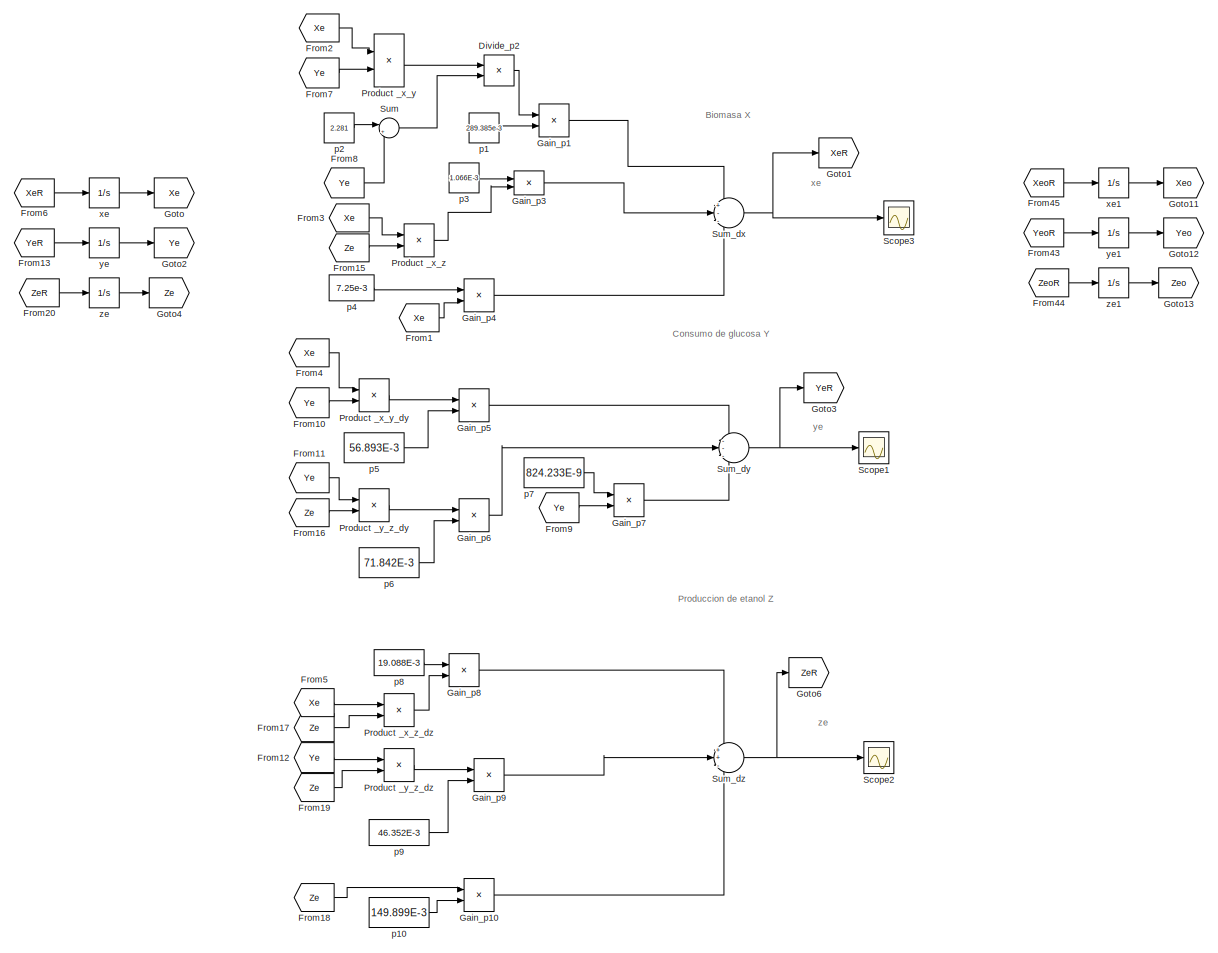
[diagram: root canvas - part 1/2, left side, full height]
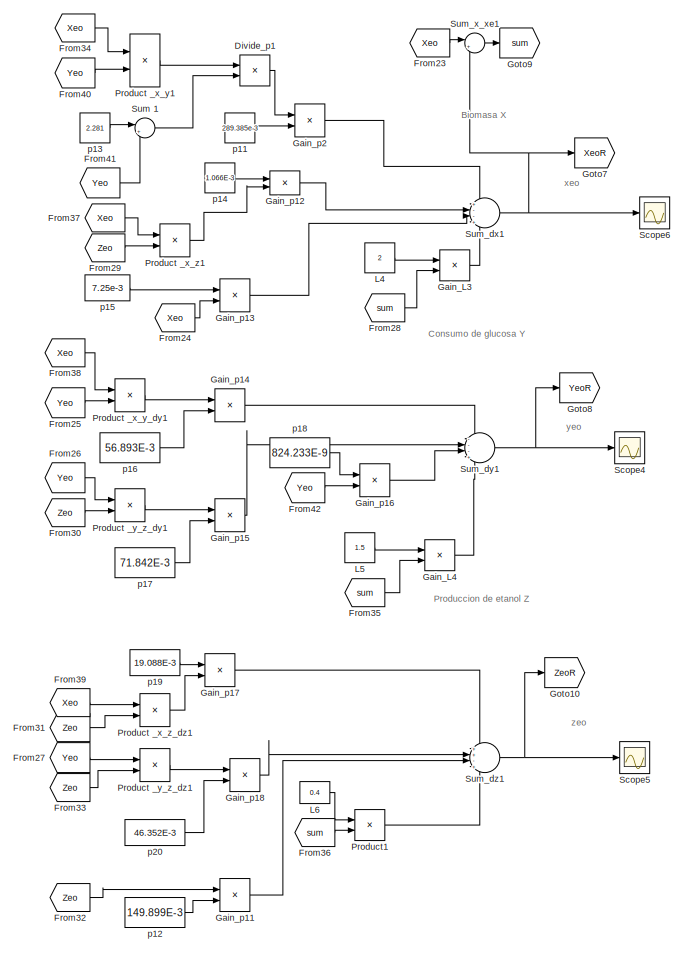
[diagram: root canvas - part 2/2, right side, full height]
MODEL slx_ba76b1b708d0
KIND model
CONFIG AbsTol = auto
CONFIG EnableMultiTasking = off
CONFIG FixedStep = 0.001
CONFIG MaxStep = auto
CONFIG MinStep = auto
CONFIG RelTol = 1e-3
CONFIG SampleTimeConstraint = Unconstrained
CONFIG SolverName = ode4
CONFIG StartTime = 0.0
CONFIG StopTime = 20
BLOCK [Product] Divide_p1
  Inputs = */
  Ports = [2, 1]
BLOCK [Product] Divide_p2
  Inputs = */
  Ports = [2, 1]
BLOCK [From] From1
  GotoTag = Xe
BLOCK [From] From10
  GotoTag = Ye
BLOCK [From] From11
  GotoTag = Ye
BLOCK [From] From12
  GotoTag = Ye
BLOCK [From] From13
  GotoTag = YeR
BLOCK [From] From15
  GotoTag = Ze
BLOCK [From] From16
  GotoTag = Ze
BLOCK [From] From17
  GotoTag = Ze
BLOCK [From] From18
  GotoTag = Ze
BLOCK [From] From19
  GotoTag = Ze
BLOCK [From] From2
  GotoTag = Xe
BLOCK [From] From20
  GotoTag = ZeR
BLOCK [From] From23
  GotoTag = Xeo
BLOCK [From] From24
  GotoTag = Xeo
BLOCK [From] From25
  GotoTag = Yeo
BLOCK [From] From26
  GotoTag = Yeo
BLOCK [From] From27
  GotoTag = Yeo
BLOCK [From] From28
  GotoTag = sum
BLOCK [From] From29
  GotoTag = Zeo
BLOCK [From] From3
  GotoTag = Xe
BLOCK [From] From30
  GotoTag = Zeo
BLOCK [From] From31
  GotoTag = Zeo
BLOCK [From] From32
  GotoTag = Zeo
BLOCK [From] From33
  GotoTag = Zeo
BLOCK [From] From34
  GotoTag = Xeo
BLOCK [From] From35
  GotoTag = sum
BLOCK [From] From36
  GotoTag = sum
BLOCK [From] From37
  GotoTag = Xeo
BLOCK [From] From38
  GotoTag = Xeo
BLOCK [From] From39
  GotoTag = Xeo
BLOCK [From] From4
  GotoTag = Xe
BLOCK [From] From40
  GotoTag = Yeo
BLOCK [From] From41
  GotoTag = Yeo
BLOCK [From] From42
  GotoTag = Yeo
BLOCK [From] From43
  GotoTag = YeoR
BLOCK [From] From44
  GotoTag = ZeoR
BLOCK [From] From45
  GotoTag = XeoR
BLOCK [From] From5
  GotoTag = Xe
BLOCK [From] From6
  GotoTag = XeR
BLOCK [From] From7
  GotoTag = Ye
BLOCK [From] From8
  GotoTag = Ye
BLOCK [From] From9
  GotoTag = Ye
BLOCK [Product] Gain_L3
  Ports = [2, 1]
BLOCK [Product] Gain_L4
  Ports = [2, 1]
BLOCK [Product] Gain_p1
  Ports = [2, 1]
BLOCK [Product] Gain_p10
  Ports = [2, 1]
BLOCK [Product] Gain_p11
  Ports = [2, 1]
BLOCK [Product] Gain_p12
  Ports = [2, 1]
BLOCK [Product] Gain_p13
  Ports = [2, 1]
BLOCK [Product] Gain_p14
  Ports = [2, 1]
BLOCK [Product] Gain_p15
  Ports = [2, 1]
BLOCK [Product] Gain_p16
  Ports = [2, 1]
BLOCK [Product] Gain_p17
  Ports = [2, 1]
BLOCK [Product] Gain_p18
  Ports = [2, 1]
BLOCK [Product] Gain_p2
  Ports = [2, 1]
BLOCK [Product] Gain_p3
  Ports = [2, 1]
BLOCK [Product] Gain_p4
  Ports = [2, 1]
BLOCK [Product] Gain_p5
  Ports = [2, 1]
BLOCK [Product] Gain_p6
  Ports = [2, 1]
BLOCK [Product] Gain_p7
  Ports = [2, 1]
BLOCK [Product] Gain_p8
  Ports = [2, 1]
BLOCK [Product] Gain_p9
  Ports = [2, 1]
BLOCK [Goto] Goto
  GotoTag = Xe
BLOCK [Goto] Goto1
  GotoTag = XeR
BLOCK [Goto] Goto10
  GotoTag = ZeoR
BLOCK [Goto] Goto11
  GotoTag = Xeo
BLOCK [Goto] Goto12
  GotoTag = Yeo
BLOCK [Goto] Goto13
  GotoTag = Zeo
BLOCK [Goto] Goto2
  GotoTag = Ye
BLOCK [Goto] Goto3
  GotoTag = YeR
BLOCK [Goto] Goto4
  GotoTag = Ze
BLOCK [Goto] Goto6
  GotoTag = ZeR
BLOCK [Goto] Goto7
  GotoTag = XeoR
BLOCK [Goto] Goto8
  GotoTag = YeoR
BLOCK [Goto] Goto9
  GotoTag = sum
BLOCK [Constant] L4
  Value = 2
BLOCK [Constant] L5
  Value = 1.5
BLOCK [Constant] L6
  Value = 0.4
BLOCK [Product] Product _x_y
  Ports = [2, 1]
BLOCK [Product] Product _x_y1
  Ports = [2, 1]
BLOCK [Product] Product _x_y_dy
  Ports = [2, 1]
BLOCK [Product] Product _x_y_dy1
  Ports = [2, 1]
BLOCK [Product] Product _x_z
  Ports = [2, 1]
BLOCK [Product] Product _x_z1
  Ports = [2, 1]
BLOCK [Product] Product _x_z_dz
  Ports = [2, 1]
BLOCK [Product] Product _x_z_dz1
  Ports = [2, 1]
BLOCK [Product] Product _y_z_dy
  Ports = [2, 1]
BLOCK [Product] Product _y_z_dy1
  Ports = [2, 1]
BLOCK [Product] Product _y_z_dz
  Ports = [2, 1]
BLOCK [Product] Product _y_z_dz1
  Ports = [2, 1]
BLOCK [Product] Product1
  NameLocation = right
  Ports = [2, 1]
BLOCK [Scope] Scope1
  Floating = off
  NumInputPorts = 1
  Ports = [1]
  ScopeSpecificationString = Simulink.scopes.TimeScopeBlockCfg('CurrentConfiguration', extmgr.ConfigurationSet(extmgr.Configuration('Core','General UI',true),extmgr.Configuration('Core','Source UI',true),extmgr.Configuration('Sources','WiredSimulink',true,'DataLoggingVariableName','ScopeData1','SampleTime','0.001'),extmgr.Configuration('Visuals','Time Domain',true,'SerializedDisplays',{struct('MinYLimReal','-1','MaxYLimReal',...<+1411ch>
BLOCK [Scope] Scope2
  Floating = off
  NumInputPorts = 1
  Ports = [1]
  ScopeSpecificationString = Simulink.scopes.TimeScopeBlockCfg('CurrentConfiguration', extmgr.ConfigurationSet(extmgr.Configuration('Core','General UI',true),extmgr.Configuration('Core','Source UI',true),extmgr.Configuration('Sources','WiredSimulink',true,'DataLoggingVariableName','ScopeData2','SampleTime','0.001'),extmgr.Configuration('Visuals','Time Domain',true,'SerializedDisplays',{struct('MinYLimReal','-1','MaxYLimReal',...<+1405ch>
BLOCK [Scope] Scope3
  Floating = off
  NumInputPorts = 1
  Ports = [1]
  ScopeSpecificationString = Simulink.scopes.TimeScopeBlockCfg('CurrentConfiguration', extmgr.ConfigurationSet(extmgr.Configuration('Core','General UI',true),extmgr.Configuration('Core','Source UI',true),extmgr.Configuration('Sources','WiredSimulink',true,'DataLoggingVariableName','ScopeData1','SampleTime','0.001'),extmgr.Configuration('Visuals','Time Domain',true,'SerializedDisplays',{struct('MinYLimReal','-1','MaxYLimReal',...<+1403ch>
BLOCK [Scope] Scope4
  Floating = off
  NumInputPorts = 1
  Ports = [1]
  ScopeSpecificationString = Simulink.scopes.TimeScopeBlockCfg('CurrentConfiguration', extmgr.ConfigurationSet(extmgr.Configuration('Core','General UI',true),extmgr.Configuration('Core','Source UI',true),extmgr.Configuration('Sources','WiredSimulink',true,'DataLoggingVariableName','ScopeData1','SampleTime','0.001'),extmgr.Configuration('Visuals','Time Domain',true,'SerializedDisplays',{struct('MinYLimReal','-1','MaxYLimReal',...<+1411ch>
BLOCK [Scope] Scope5
  Floating = off
  NumInputPorts = 1
  Ports = [1]
  ScopeSpecificationString = Simulink.scopes.TimeScopeBlockCfg('CurrentConfiguration', extmgr.ConfigurationSet(extmgr.Configuration('Core','General UI',true),extmgr.Configuration('Core','Source UI',true),extmgr.Configuration('Sources','WiredSimulink',true,'DataLoggingVariableName','ScopeData2','SampleTime','0.001'),extmgr.Configuration('Visuals','Time Domain',true,'SerializedDisplays',{struct('MinYLimReal','-1','MaxYLimReal',...<+1405ch>
BLOCK [Scope] Scope6
  Floating = off
  NumInputPorts = 1
  Ports = [1]
  ScopeSpecificationString = Simulink.scopes.TimeScopeBlockCfg('CurrentConfiguration', extmgr.ConfigurationSet(extmgr.Configuration('Core','General UI',true),extmgr.Configuration('Core','Source UI',true),extmgr.Configuration('Sources','WiredSimulink',true,'DataLoggingVariableName','ScopeData3','SampleTime','0.001'),extmgr.Configuration('Visuals','Time Domain',true,'SerializedDisplays',{struct('MinYLimReal','-1','MaxYLimReal',...<+1403ch>
BLOCK [Sum] Sum 
  Inputs = |++
  Ports = [2, 1]
BLOCK [Sum] Sum 1
  Inputs = |++
  Ports = [2, 1]
BLOCK [Sum] Sum_dx
  Inputs = +--
  Ports = [3, 1]
BLOCK [Sum] Sum_dx1
  Inputs = +--+
  Ports = [4, 1]
BLOCK [Sum] Sum_dy
  Inputs = ---
  Ports = [3, 1]
BLOCK [Sum] Sum_dy1
  Inputs = ---+
  Ports = [4, 1]
BLOCK [Sum] Sum_dz
  Inputs = ++-
  Ports = [3, 1]
BLOCK [Sum] Sum_dz1
  Inputs = ++-+
  Ports = [4, 1]
BLOCK [Sum] Sum_x_xe1
  Inputs = |+-
  Ports = [2, 1]
BLOCK [Constant] p1
  Value = 289.385e-3
BLOCK [Constant] p10
  Value = 149.899E-3
BLOCK [Constant] p11
  Value = 289.385e-3
BLOCK [Constant] p12
  Value = 149.899E-3
BLOCK [Constant] p13
  Value = 2.281
BLOCK [Constant] p14
  Value = 1.066E-3
BLOCK [Constant] p15
  Value = 7.25e-3
BLOCK [Constant] p16
  Value = 56.893E-3
BLOCK [Constant] p17
  Value = 71.842E-3
BLOCK [Constant] p18
  Value = 824.233E-9
BLOCK [Constant] p19
  Value = 19.088E-3
BLOCK [Constant] p2
  Value = 2.281
BLOCK [Constant] p20
  Value = 46.352E-3
BLOCK [Constant] p3
  Value = 1.066E-3
BLOCK [Constant] p4
  Value = 7.25e-3
BLOCK [Constant] p5
  Value = 56.893E-3
BLOCK [Constant] p6
  Value = 71.842E-3
BLOCK [Constant] p7
  Value = 824.233E-9
BLOCK [Constant] p8
  Value = 19.088E-3
BLOCK [Constant] p9
  Value = 46.352E-3
BLOCK [Integrator] xe
  InitialCondition = 1
  Ports = [1, 1]
BLOCK [Integrator] xe1
  InitialCondition = 1
  Ports = [1, 1]
BLOCK [Integrator] ye
  InitialCondition = 21
  Ports = [1, 1]
BLOCK [Integrator] ye1
  InitialCondition = 21
  Ports = [1, 1]
BLOCK [Integrator] ze
  InitialCondition = 0.1
  Ports = [1, 1]
BLOCK [Integrator] ze1
  InitialCondition = 0.1
  Ports = [1, 1]
ANNOTATION (root): Biomasa X
ANNOTATION (root): Consumo de glucosa Y
ANNOTATION (root): Produccion de etanol Z
ANNOTATION (root): xe
ANNOTATION (root): xeo
ANNOTATION (root): ye
ANNOTATION (root): yeo
ANNOTATION (root): ze
ANNOTATION (root): zeo
LINE Divide_p1:1 -> Gain_p2:1
LINE Divide_p2:1 -> Gain_p1:1
LINE From10:1 -> Product _x_y_dy:2
LINE From11:1 -> Product _y_z_dy:1
LINE From12:1 -> Product _y_z_dz:1
LINE From13:1 -> ye:1
LINE From15:1 -> Product _x_z:2
LINE From16:1 -> Product _y_z_dy:2
LINE From17:1 -> Product _x_z_dz:2
LINE From18:1 -> Gain_p10:1
LINE From19:1 -> Product _y_z_dz:2
LINE From1:1 -> Gain_p4:2
LINE From20:1 -> ze:1
LINE From23:1 -> Sum_x_xe1:1
LINE From24:1 -> Gain_p13:2
LINE From25:1 -> Product _x_y_dy1:2
LINE From26:1 -> Product _y_z_dy1:1
LINE From27:1 -> Product _y_z_dz1:1
LINE From28:1 -> Gain_L3:2
LINE From29:1 -> Product _x_z1:2
LINE From2:1 -> Product _x_y:1
LINE From30:1 -> Product _y_z_dy1:2
LINE From31:1 -> Product _x_z_dz1:2
LINE From32:1 -> Gain_p11:1
LINE From33:1 -> Product _y_z_dz1:2
LINE From34:1 -> Product _x_y1:1
LINE From35:1 -> Gain_L4:2
LINE From36:1 -> Product1:2
LINE From37:1 -> Product _x_z1:1
LINE From38:1 -> Product _x_y_dy1:1
LINE From39:1 -> Product _x_z_dz1:1
LINE From3:1 -> Product _x_z:1
LINE From40:1 -> Product _x_y1:2
LINE From41:1 -> Sum 1:2
LINE From42:1 -> Gain_p16:2
LINE From43:1 -> ye1:1
LINE From44:1 -> ze1:1
LINE From45:1 -> xe1:1
LINE From4:1 -> Product _x_y_dy:1
LINE From5:1 -> Product _x_z_dz:1
LINE From6:1 -> xe:1
LINE From7:1 -> Product _x_y:2
LINE From8:1 -> Sum :2
LINE From9:1 -> Gain_p7:2
LINE Gain_L3:1 -> Sum_dx1:4
LINE Gain_L4:1 -> Sum_dy1:4
LINE Gain_p10:1 -> Sum_dz:3
LINE Gain_p11:1 -> Sum_dz1:3
LINE Gain_p12:1 -> Sum_dx1:2
LINE Gain_p13:1 -> Sum_dx1:3
LINE Gain_p14:1 -> Sum_dy1:1
LINE Gain_p15:1 -> Sum_dy1:2
LINE Gain_p16:1 -> Sum_dy1:3
LINE Gain_p17:1 -> Sum_dz1:1
LINE Gain_p18:1 -> Sum_dz1:2
LINE Gain_p1:1 -> Sum_dx:1
LINE Gain_p2:1 -> Sum_dx1:1
LINE Gain_p3:1 -> Sum_dx:2
LINE Gain_p4:1 -> Sum_dx:3
LINE Gain_p5:1 -> Sum_dy:1
LINE Gain_p6:1 -> Sum_dy:2
LINE Gain_p7:1 -> Sum_dy:3
LINE Gain_p8:1 -> Sum_dz:1
LINE Gain_p9:1 -> Sum_dz:2
LINE L4:1 -> Gain_L3:1
LINE L5:1 -> Gain_L4:1
LINE L6:1 -> Product1:1
LINE Product _x_y1:1 -> Divide_p1:1
LINE Product _x_y:1 -> Divide_p2:1
LINE Product _x_y_dy1:1 -> Gain_p14:1
LINE Product _x_y_dy:1 -> Gain_p5:1
LINE Product _x_z1:1 -> Gain_p12:2
LINE Product _x_z:1 -> Gain_p3:2
LINE Product _x_z_dz1:1 -> Gain_p17:2
LINE Product _x_z_dz:1 -> Gain_p8:2
LINE Product _y_z_dy1:1 -> Gain_p15:1
LINE Product _y_z_dy:1 -> Gain_p6:1
LINE Product _y_z_dz1:1 -> Gain_p18:1
LINE Product _y_z_dz:1 -> Gain_p9:1
LINE Product1:1 -> Sum_dz1:4
LINE Sum 1:1 -> Divide_p1:2
LINE Sum :1 -> Divide_p2:2
NET Sum_dx1:1 -> Goto7:1, Scope6:1, Sum_x_xe1:2
NET Sum_dx:1 -> Goto1:1, Scope3:1
NET Sum_dy1:1 -> Goto8:1, Scope4:1
NET Sum_dy:1 -> Goto3:1, Scope1:1
NET Sum_dz1:1 -> Goto10:1, Scope5:1
NET Sum_dz:1 -> Goto6:1, Scope2:1
LINE Sum_x_xe1:1 -> Goto9:1
LINE p10:1 -> Gain_p10:2
LINE p11:1 -> Gain_p2:2
LINE p12:1 -> Gain_p11:2
LINE p13:1 -> Sum 1:1
LINE p14:1 -> Gain_p12:1
LINE p15:1 -> Gain_p13:1
LINE p16:1 -> Gain_p14:2
LINE p17:1 -> Gain_p15:2
LINE p18:1 -> Gain_p16:1
LINE p19:1 -> Gain_p17:1
LINE p1:1 -> Gain_p1:2
LINE p20:1 -> Gain_p18:2
LINE p2:1 -> Sum :1
LINE p3:1 -> Gain_p3:1
LINE p4:1 -> Gain_p4:1
LINE p5:1 -> Gain_p5:2
LINE p6:1 -> Gain_p6:2
LINE p7:1 -> Gain_p7:1
LINE p8:1 -> Gain_p8:1
LINE p9:1 -> Gain_p9:2
LINE xe1:1 -> Goto11:1
LINE xe:1 -> Goto:1
LINE ye1:1 -> Goto12:1
LINE ye:1 -> Goto2:1
LINE ze1:1 -> Goto13:1
LINE ze:1 -> Goto4:1
note: NET lines group one-source signal fan-out (src -> all destinations, sorted); 1:1 wires keep LINE
